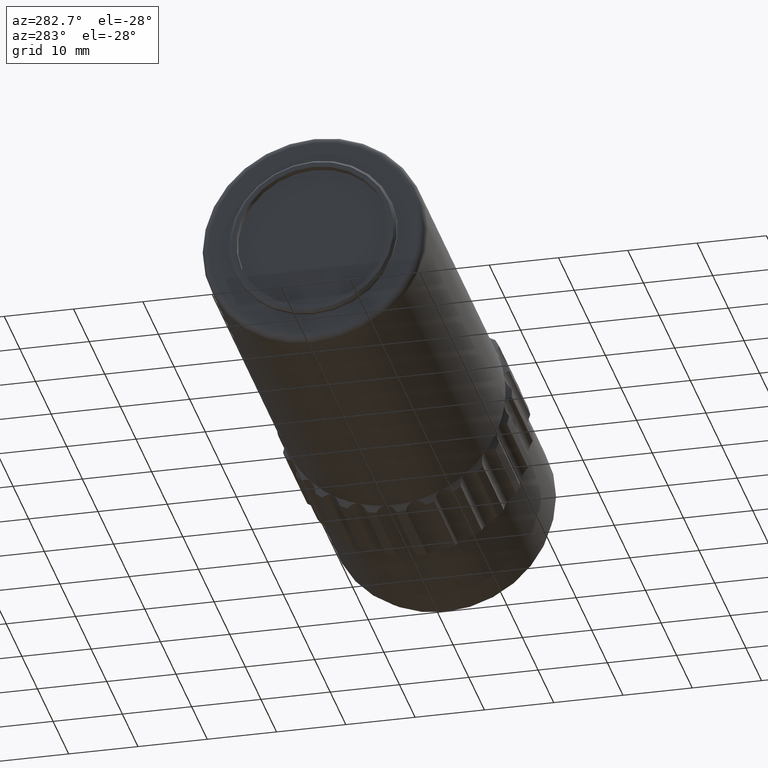
[diagram: clean part render]
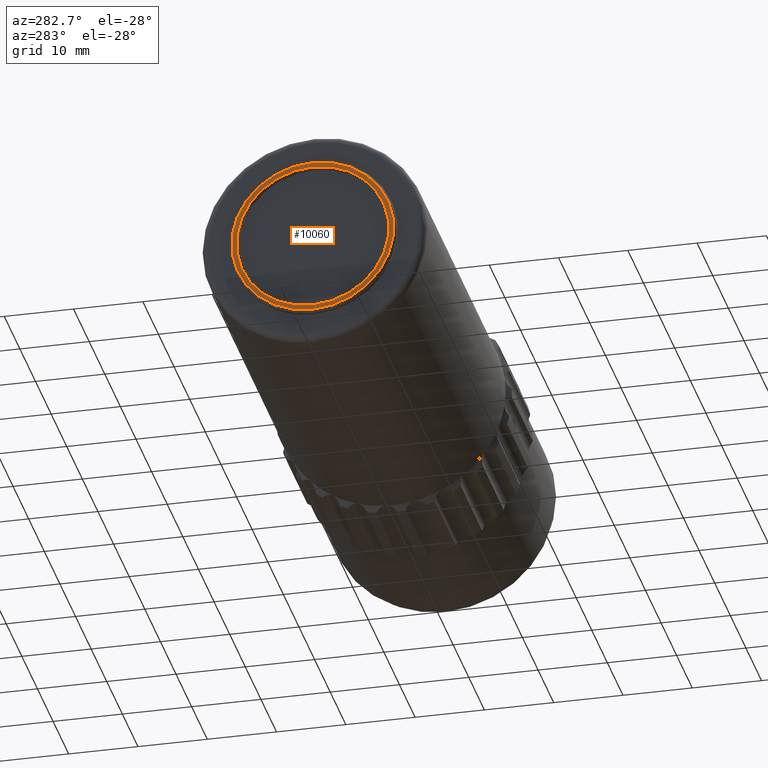
[diagram: same view with one face highlighted and labeled with its STEP entity id]
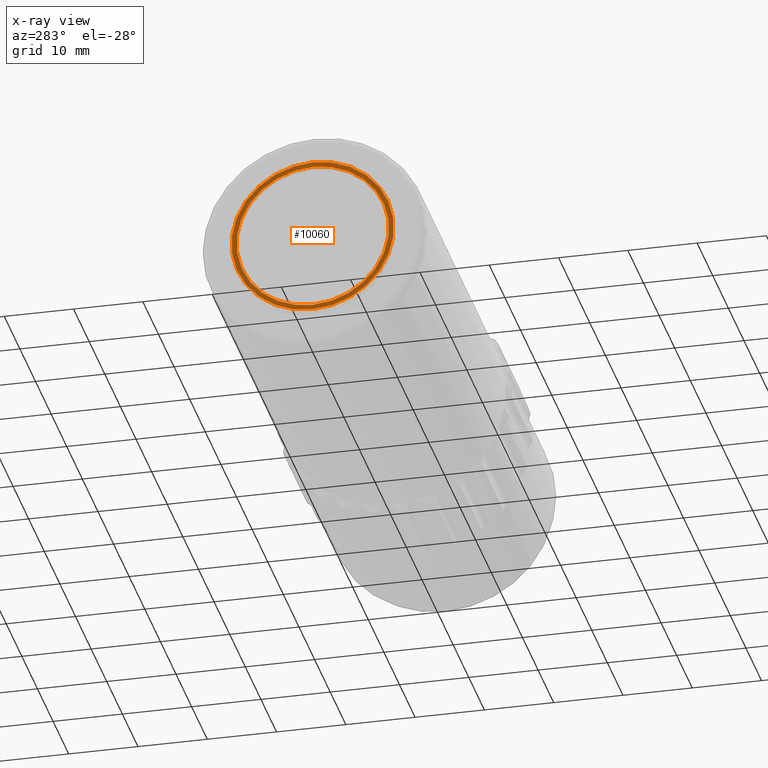
[diagram: x-ray of the same camera — body ghosted, the highlighted face saturated]
A machine part, auxiliary view. The second image highlights one B-rep face of the part: STEP entity #10060.
The next image is the same camera in x-ray: the body ghosted, the highlighted face saturated — about 0% of this face is hidden behind the body in this view.
In plain terms, the highlighted planar face has unit normal (1, 0, 0).
Its self-contained STEP definition (entity closure, byte-faithful):
#793 = EDGE_CURVE ( 'NONE', #52330, #11380, #49063, .T. ) ;
#1208 = CIRCLE ( 'NONE', #3024, 11.70000000000000284 ) ;
#3024 = AXIS2_PLACEMENT_3D ( 'NONE', #13039, #9073, #26044 ) ;
#5002 = DIRECTION ( 'NONE',  ( 0.000000000000000000, 0.000000000000000000, -1.000000000000000000 ) ) ;
#6298 = ORIENTED_EDGE ( 'NONE', *, *, #51286, .T. ) ;
#6442 = EDGE_LOOP ( 'NONE', ( #38599, #47315 ) ) ;
#9073 = DIRECTION ( 'NONE',  ( -1.000000000000000000, -0.000000000000000000, -0.000000000000000000 ) ) ;
#10060 = ADVANCED_FACE ( 'NONE', ( #17172, #47482 ), #17736, .F. ) ;
#11380 = VERTEX_POINT ( 'NONE', #23641 ) ;
#12042 = EDGE_LOOP ( 'NONE', ( #16961, #6298 ) ) ;
#12140 = CARTESIAN_POINT ( 'NONE',  ( 0.000000000000000000, 0.000000000000000000, 0.000000000000000000 ) ) ;
#12203 = DIRECTION ( 'NONE',  ( 0.000000000000000000, 0.000000000000000000, 1.000000000000000000 ) ) ;
#12408 = AXIS2_PLACEMENT_3D ( 'NONE', #48037, #21412, #5002 ) ;
#13039 = CARTESIAN_POINT ( 'NONE',  ( 0.000000000000000000, 0.000000000000000000, 0.000000000000000000 ) ) ;
#16961 = ORIENTED_EDGE ( 'NONE', *, *, #22458, .T. ) ;
#17172 = FACE_OUTER_BOUND ( 'NONE', #12042, .T. ) ;
#17736 = PLANE ( 'NONE',  #12408 ) ;
#19078 = DIRECTION ( 'NONE',  ( 0.000000000000000000, 0.000000000000000000, 1.000000000000000000 ) ) ;
#21412 = DIRECTION ( 'NONE',  ( 1.000000000000000000, 0.000000000000000000, 0.000000000000000000 ) ) ;
#21667 = CIRCLE ( 'NONE', #53318, 11.00000000000000000 ) ;
#22458 = EDGE_CURVE ( 'NONE', #36191, #38011, #1208, .T. ) ;
#23163 = EDGE_CURVE ( 'NONE', #11380, #52330, #21667, .T. ) ;
#23641 = CARTESIAN_POINT ( 'NONE',  ( 0.000000000000000000, 0.000000000000000000, 11.00000000000000000 ) ) ;
#24623 = AXIS2_PLACEMENT_3D ( 'NONE', #30025, #51004, #12203 ) ;
#25121 = CARTESIAN_POINT ( 'NONE',  ( 0.000000000000000000, 1.457329690985350393E-15, 11.70000000000000284 ) ) ;
#26044 = DIRECTION ( 'NONE',  ( 0.000000000000000000, 0.000000000000000000, -1.000000000000000000 ) ) ;
#30025 = CARTESIAN_POINT ( 'NONE',  ( 0.000000000000000000, 0.000000000000000000, 0.000000000000000000 ) ) ;
#30293 = CIRCLE ( 'NONE', #44727, 11.70000000000000284 ) ;
#30987 = DIRECTION ( 'NONE',  ( -1.000000000000000000, 0.000000000000000000, 0.000000000000000000 ) ) ;
#33235 = CARTESIAN_POINT ( 'NONE',  ( 0.000000000000000000, 1.347111479062088405E-15, -11.00000000000000000 ) ) ;
#36086 = CARTESIAN_POINT ( 'NONE',  ( 0.000000000000000000, 0.000000000000000000, 0.000000000000000000 ) ) ;
#36191 = VERTEX_POINT ( 'NONE', #50251 ) ;
#38011 = VERTEX_POINT ( 'NONE', #25121 ) ;
#38599 = ORIENTED_EDGE ( 'NONE', *, *, #23163, .F. ) ;
#44727 = AXIS2_PLACEMENT_3D ( 'NONE', #12140, #51499, #47820 ) ;
#47315 = ORIENTED_EDGE ( 'NONE', *, *, #793, .F. ) ;
#47482 = FACE_BOUND ( 'NONE', #6442, .T. ) ;
#47820 = DIRECTION ( 'NONE',  ( 0.000000000000000000, 0.000000000000000000, -1.000000000000000000 ) ) ;
#48037 = CARTESIAN_POINT ( 'NONE',  ( 0.000000000000000000, 0.000000000000000000, 0.000000000000000000 ) ) ;
#49063 = CIRCLE ( 'NONE', #24623, 11.00000000000000000 ) ;
#50251 = CARTESIAN_POINT ( 'NONE',  ( 0.000000000000000000, 0.000000000000000000, -11.70000000000000284 ) ) ;
#51004 = DIRECTION ( 'NONE',  ( -1.000000000000000000, 0.000000000000000000, 0.000000000000000000 ) ) ;
#51286 = EDGE_CURVE ( 'NONE', #38011, #36191, #30293, .T. ) ;
#51499 = DIRECTION ( 'NONE',  ( -1.000000000000000000, -0.000000000000000000, -0.000000000000000000 ) ) ;
#52330 = VERTEX_POINT ( 'NONE', #33235 ) ;
#53318 = AXIS2_PLACEMENT_3D ( 'NONE', #36086, #30987, #19078 ) ;